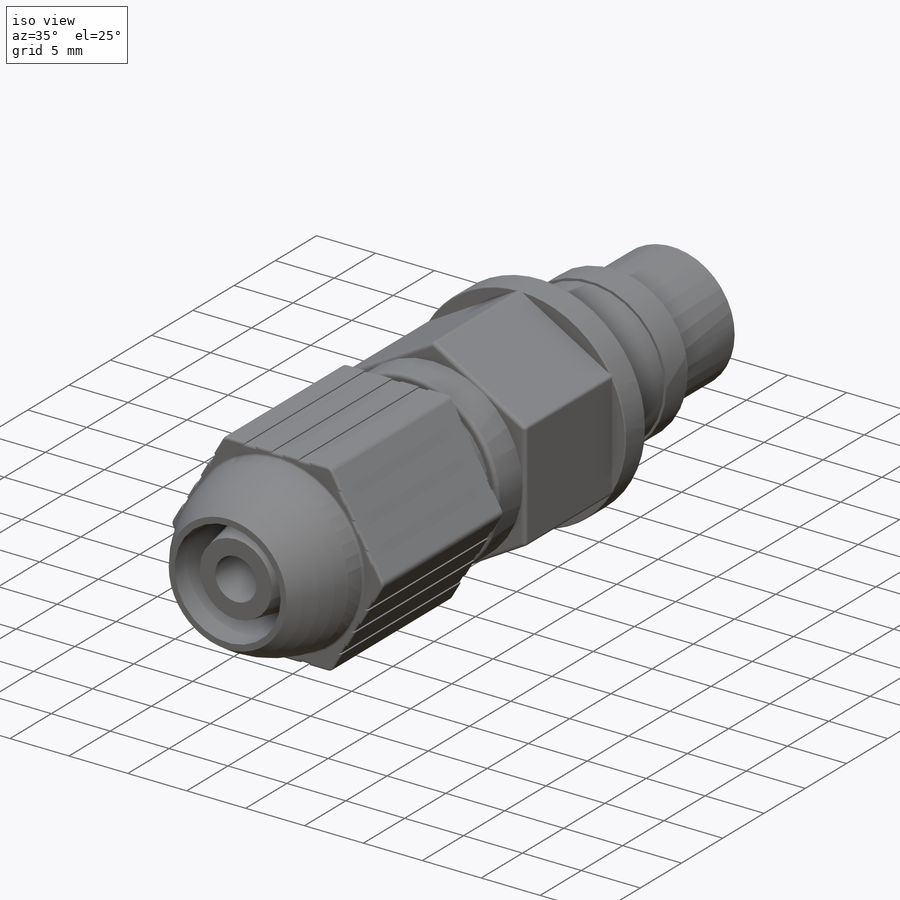
[diagram: iso view]
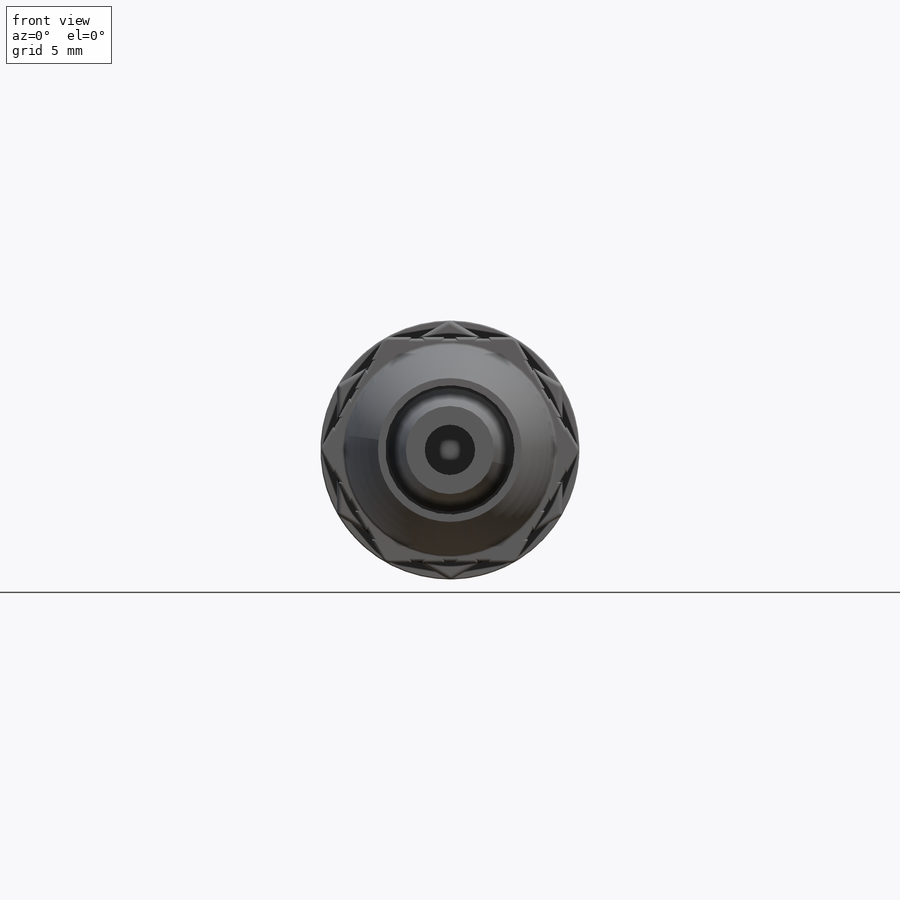
[diagram: front view]
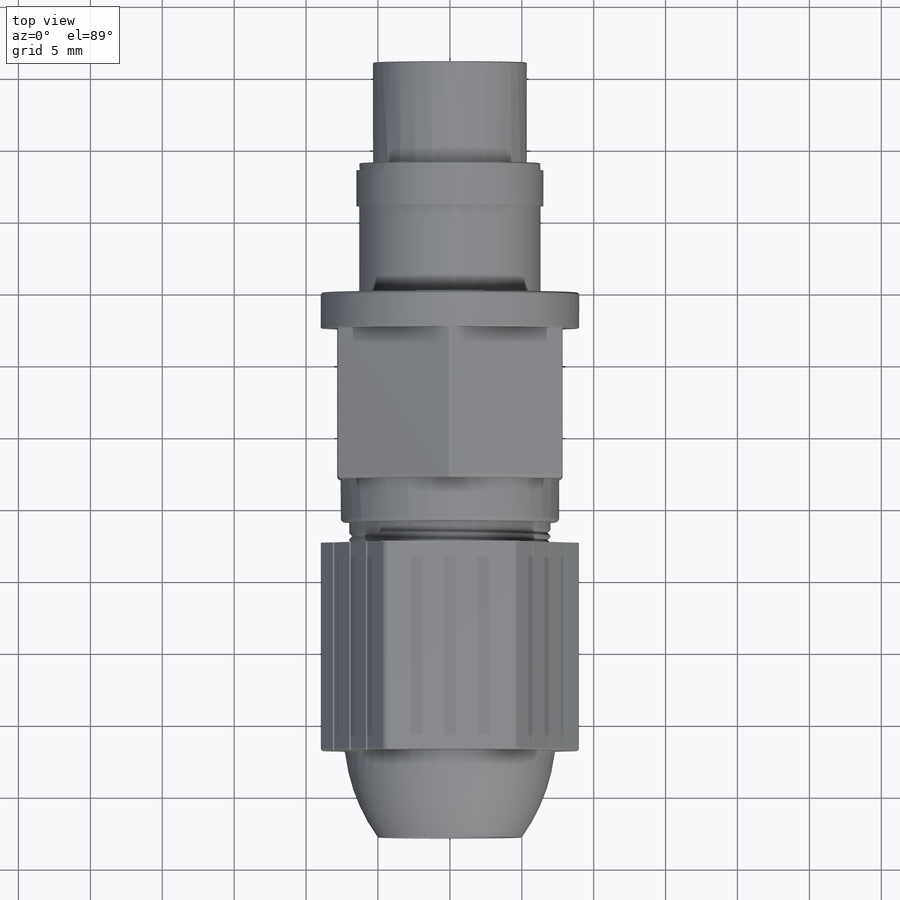
[diagram: top view]
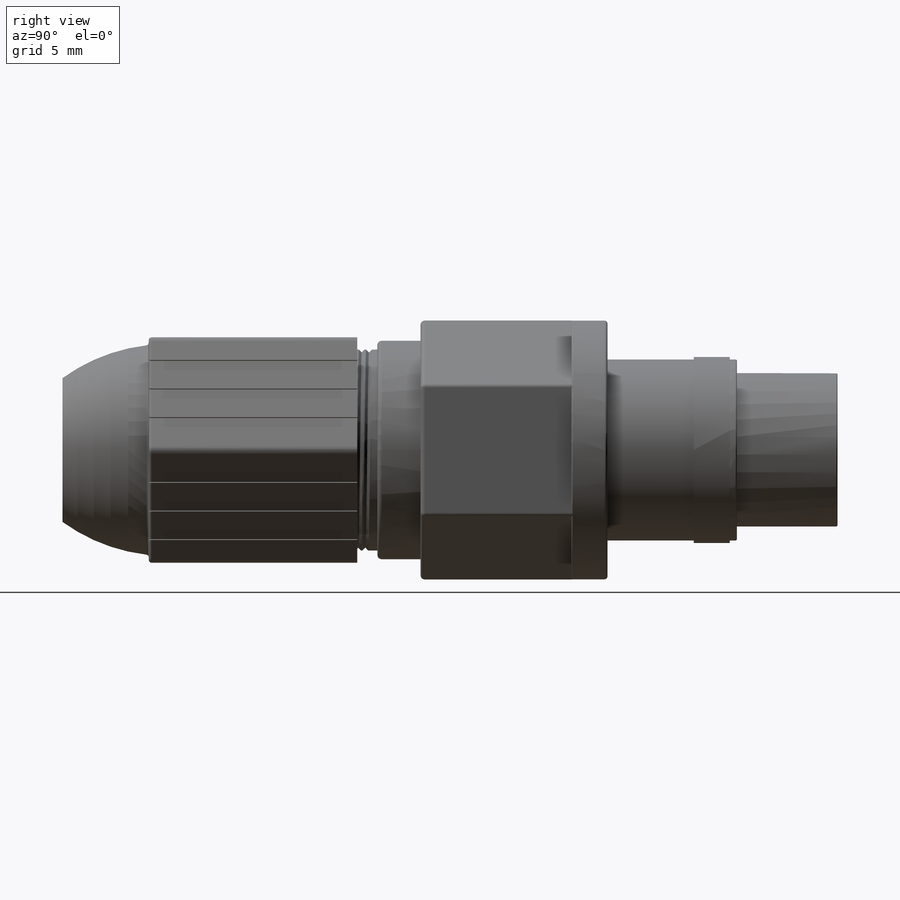
[diagram: right view]
SOLIDWORKS PART (.sldprt)
format: sldprt  version: not decoded by parser v0  size: 1,157,120 bytes
history: native  units: mm
features: sketch x20, extrude x10, fillet x8, cut_extrude x6, plane x5, pattern_circular x2, material x1, helix x1, sweep x1, cut_revolve x1, revolve x1 (+13 scaffold rows collapsed)
feature tree (69):
  scaffold x13  (default folders/planes/origin — collapsed)
  material  "Материал <не указан>"
  plane  "Спереди"
  plane  "Сверху"
  plane  "Справа"
  sketch  "Эскиз1"  dims[D1=18.0mm]
  extrude  "Бобышка-Вытянуть1"  Depth=2.5mm
  sketch  "Эскиз2"  dims[D1=9.05mm]
  extrude  "Бобышка-Вытянуть2"  Depth=10.5mm
  fillet  "Скругление2"  Radius=0.3mm
  sketch  "Эскиз3"  dims[D1=15.2mm]
  extrude  "Бобышка-Вытянуть3"  Depth=3mm
  fillet  "Скругление3"  Radius=0.3mm
  fillet  "Скругление4"  Radius=0.3mm
  sketch  "Эскиз4"  dims[D1=14.0mm]
  extrude  "Бобышка-Вытянуть4"  Depth=5mm
  plane  "Плоскость1"  Offset=16.5mm
  sketch  "Эскиз7"
  helix  "Спираль2"  Pitch=4.375mm
  sketch  "Эскиз9"  dims[D1=0.4mm D2=~0.381541mm]
  sweep  "Вырез-По траектории3"
  plane  "Плоскость2"  Offset=17.4mm
  sketch  "Эскиз10"  dims[c1.D1=18.1mm c1.D2=9.05mm c1.D3=9.05mm c2.D3=150.0deg]
  extrude  "Бобышка-Вытянуть5"  Depth=14.5mm
  fillet  "Скругление5"  Radius=0.5mm
  sketch  "Эскиз11"  dims[c1.D1=0.4mm c1.D2=0.1mm c1.D3=0.8mm c1.D4=1.5mm c1.D5=~0.350234mm c2.D4=1.5mm c2.D5=~0.86606mm c2.D6=~1.16606mm]
  cut_extrude  "Вырез-Вытянуть1"  Depth=14.5mm
  pattern_circular  "Круговой массив1"  Count=6 Angle=360deg
  sketch  "Эскиз12"  dims[D1=14.6mm]
  extrude  "Бобышка-Вытянуть6"  Depth=6mm
  sketch  "Эскиз13"  dims[D2=~12.447447mm D1=5.0mm]
  cut_revolve  "Вырез-Повернуть1"  Angle=360deg
  sketch  "Эскиз14"  dims[D1=9.0mm]
  cut_extrude  "Вырез-Вытянуть2"  Depth=8mm
  sketch  "Эскиз15"  dims[D1=0.2mm]
  extrude  "Бобышка-Вытянуть7"  Depth=7mm
  sketch  "Эскиз16"  dims[D1=3.5mm]
  cut_extrude  "Вырез-Вытянуть3"  Depth=20mm
  fillet  "Скругление9"  Radius=0.2mm
  sketch  "Эскиз17"  dims[D1=12.6mm]
  extrude  "Бобышка-Вытянуть8"  Depth=9mm
  sketch  "Эскиз18"  dims[D1=2.5mm D2=6.0mm D3=0.2mm]
  revolve  "Повернуть1"  Angle=360deg
  sketch  "Эскиз19"  dims[D1=10.7mm]
  extrude  "Бобышка-Вытянуть9"  Depth=7mm
  sketch  "Эскиз20"  dims[D1=1.5mm D2=3.5mm D4=3.5mm D5=~3.031089mm D3=6.0]
  cut_extrude  "Вырез-Вытянуть4"  Depth=8mm
  sketch  "Эскиз21"  dims[D1=0.2mm D2=0.2mm]
  extrude  "Бобышка-Вытянуть10"  Depth=7mm
  pattern_circular  "Круговой массив2"  Count=6 Angle=360deg
  fillet  "Скругление10"  Radius=0.1mm
  sketch  "Эскиз23"  dims[c1.D3=0.1mm c1.D1=0.6mm c1.D2=0.6mm c2.D1=0.6mm c2.D2=0.7mm]
  cut_extrude  "Вырез-Вытянуть5"  [1 undecoded]
  sketch  "Эскиз24"  dims[D1=0.2mm]
  cut_extrude  "Вырез-Вытянуть6"  Depth=10mm
  fillet  "Скругление11"  Radius=0.2mm
  fillet  "Скругление12"  Radius=0.1mm
decode coverage: 47 of 50 modeling features carry decoded parameters
note: ~ marks probable driven/reference dimensions
note: 1 parameter value undecoded
note: suppression state not decoded; provenance and decode notes live in map.json
